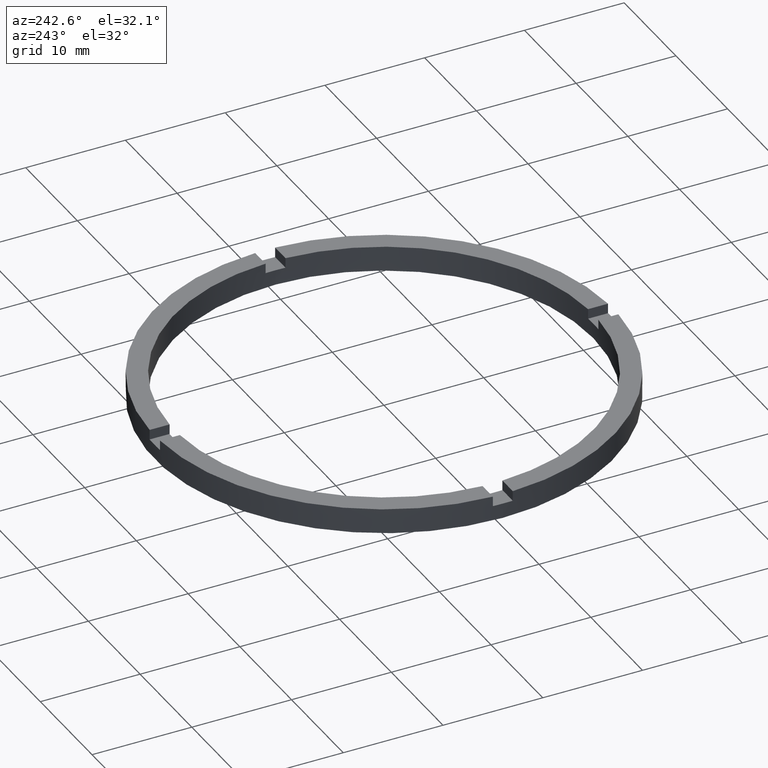
[diagram: clean part render]
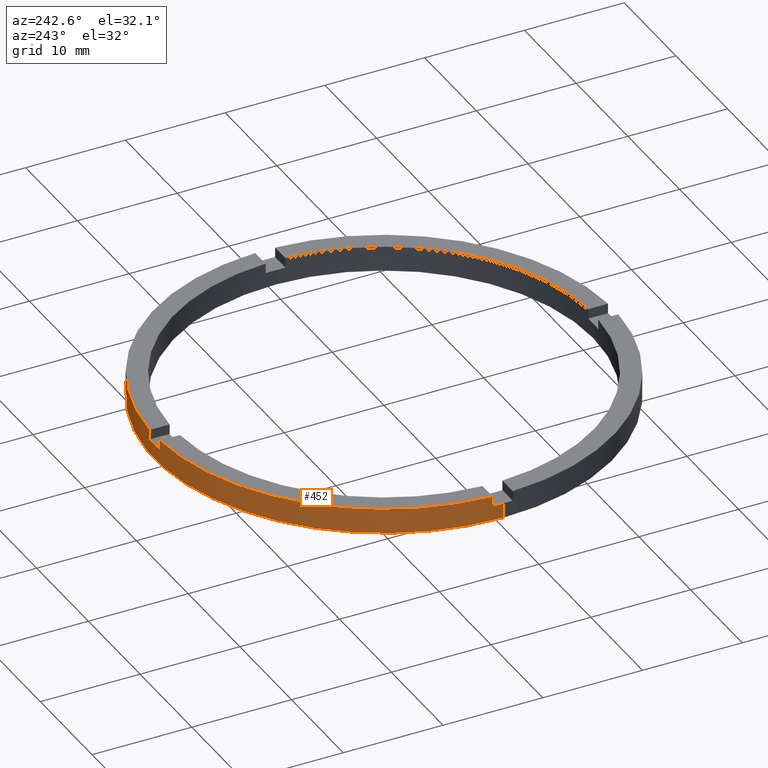
[diagram: same view with one face highlighted and labeled with its STEP entity id]
A machine part, auxiliary view. The second image highlights one B-rep face of the part: STEP entity #452.
In plain terms, the highlighted cylindrical surface (partial cylindrical patch) has radius 23 mm, axis along (-0, -0, -1).
Its self-contained STEP definition (entity closure, byte-faithful):
#2 = ORIENTED_EDGE ( 'NONE', *, *, #365, .F. ) ;
#4 = VERTEX_POINT ( 'NONE', #769 ) ;
#7 = CARTESIAN_POINT ( 'NONE',  ( 0.000000000000000000, 0.000000000000000000, 1.500000000000000000 ) ) ;
#36 = DIRECTION ( 'NONE',  ( -0.000000000000000000, -0.000000000000000000, -1.000000000000000000 ) ) ;
#48 = DIRECTION ( 'NONE',  ( 1.000000000000000000, 0.000000000000000000, 0.000000000000000000 ) ) ;
#49 = AXIS2_PLACEMENT_3D ( 'NONE', #316, #36, #215 ) ;
#61 = CARTESIAN_POINT ( 'NONE',  ( 0.000000000000000000, 0.000000000000000000, 1.500000000000000000 ) ) ;
#64 = CARTESIAN_POINT ( 'NONE',  ( -1.000000000000025757, 22.97825058615211091, 2.500000000000000000 ) ) ;
#65 = AXIS2_PLACEMENT_3D ( 'NONE', #61, #242, #444 ) ;
#73 = CARTESIAN_POINT ( 'NONE',  ( 0.000000000000000000, 0.000000000000000000, 2.500000000000000000 ) ) ;
#74 = EDGE_CURVE ( 'NONE', #779, #740, #394, .T. ) ;
#93 = LINE ( 'NONE', #676, #390 ) ;
#97 = DIRECTION ( 'NONE',  ( 1.000000000000000000, 0.000000000000000000, 0.000000000000000000 ) ) ;
#101 = DIRECTION ( 'NONE',  ( -0.000000000000000000, -0.000000000000000000, -1.000000000000000000 ) ) ;
#108 = EDGE_CURVE ( 'NONE', #720, #577, #93, .T. ) ;
#111 = CARTESIAN_POINT ( 'NONE',  ( 0.9999999999999742428, 22.97825058615211447, 2.500000000000000000 ) ) ;
#112 = EDGE_CURVE ( 'NONE', #779, #237, #366, .T. ) ;
#117 = ORIENTED_EDGE ( 'NONE', *, *, #108, .T. ) ;
#124 = VERTEX_POINT ( 'NONE', #599 ) ;
#126 = CARTESIAN_POINT ( 'NONE',  ( -23.00000000000000000, 0.000000000000000000, 2.500000000000000000 ) ) ;
#136 = CIRCLE ( 'NONE', #255, 23.00000000000000000 ) ;
#144 = LINE ( 'NONE', #126, #440 ) ;
#162 = CIRCLE ( 'NONE', #556, 23.00000000000000000 ) ;
#164 = CIRCLE ( 'NONE', #65, 23.00000000000000000 ) ;
#166 = CIRCLE ( 'NONE', #361, 23.00000000000000000 ) ;
#179 = LINE ( 'NONE', #362, #447 ) ;
#182 = VECTOR ( 'NONE', #439, 1000.000000000000000 ) ;
#193 = DIRECTION ( 'NONE',  ( -0.000000000000000000, -0.000000000000000000, -1.000000000000000000 ) ) ;
#194 = CIRCLE ( 'NONE', #767, 23.00000000000000000 ) ;
#196 = ORIENTED_EDGE ( 'NONE', *, *, #403, .T. ) ;
#215 = DIRECTION ( 'NONE',  ( -1.000000000000000000, 0.000000000000000000, 0.000000000000000000 ) ) ;
#233 = VERTEX_POINT ( 'NONE', #281 ) ;
#237 = VERTEX_POINT ( 'NONE', #724 ) ;
#242 = DIRECTION ( 'NONE',  ( 0.000000000000000000, 0.000000000000000000, 1.000000000000000000 ) ) ;
#249 = EDGE_CURVE ( 'NONE', #389, #286, #164, .T. ) ;
#255 = AXIS2_PLACEMENT_3D ( 'NONE', #73, #478, #706 ) ;
#257 = ORIENTED_EDGE ( 'NONE', *, *, #74, .T. ) ;
#281 = CARTESIAN_POINT ( 'NONE',  ( 23.00000000000000000, 2.816687638038912352E-15, 0.000000000000000000 ) ) ;
#286 = VERTEX_POINT ( 'NONE', #521 ) ;
#295 = CARTESIAN_POINT ( 'NONE',  ( 0.000000000000000000, 0.000000000000000000, 2.500000000000000000 ) ) ;
#296 = DIRECTION ( 'NONE',  ( 1.000000000000000000, 0.000000000000000000, 0.000000000000000000 ) ) ;
#302 = ORIENTED_EDGE ( 'NONE', *, *, #249, .F. ) ;
#316 = CARTESIAN_POINT ( 'NONE',  ( 0.000000000000000000, 0.000000000000000000, 2.500000000000000000 ) ) ;
#350 = EDGE_CURVE ( 'NONE', #237, #124, #144, .T. ) ;
#361 = AXIS2_PLACEMENT_3D ( 'NONE', #295, #421, #97 ) ;
#362 = CARTESIAN_POINT ( 'NONE',  ( 23.00000000000000000, 2.816687638038912352E-15, 2.500000000000000000 ) ) ;
#365 = EDGE_CURVE ( 'NONE', #479, #755, #136, .T. ) ;
#366 = CIRCLE ( 'NONE', #457, 23.00000000000000000 ) ;
#380 = ORIENTED_EDGE ( 'NONE', *, *, #671, .F. ) ;
#389 = VERTEX_POINT ( 'NONE', #534 ) ;
#390 = VECTOR ( 'NONE', #501, 1000.000000000000000 ) ;
#394 = LINE ( 'NONE', #493, #653 ) ;
#401 = DIRECTION ( 'NONE',  ( 0.000000000000000000, 0.000000000000000000, 1.000000000000000000 ) ) ;
#403 = EDGE_CURVE ( 'NONE', #233, #124, #162, .T. ) ;
#412 = DIRECTION ( 'NONE',  ( -0.000000000000000000, -0.000000000000000000, -1.000000000000000000 ) ) ;
#418 = FACE_OUTER_BOUND ( 'NONE', #553, .T. ) ;
#421 = DIRECTION ( 'NONE',  ( 0.000000000000000000, 0.000000000000000000, 1.000000000000000000 ) ) ;
#438 = CYLINDRICAL_SURFACE ( 'NONE', #49, 23.00000000000000000 ) ;
#439 = DIRECTION ( 'NONE',  ( 0.000000000000000000, 0.000000000000000000, 1.000000000000000000 ) ) ;
#440 = VECTOR ( 'NONE', #412, 1000.000000000000000 ) ;
#443 = DIRECTION ( 'NONE',  ( 0.000000000000000000, 0.000000000000000000, 1.000000000000000000 ) ) ;
#444 = DIRECTION ( 'NONE',  ( 1.000000000000000000, 0.000000000000000000, 0.000000000000000000 ) ) ;
#447 = VECTOR ( 'NONE', #193, 1000.000000000000000 ) ;
#449 = VECTOR ( 'NONE', #101, 1000.000000000000000 ) ;
#452 = ADVANCED_FACE ( 'NONE', ( #418 ), #438, .T. ) ;
#457 = AXIS2_PLACEMENT_3D ( 'NONE', #7, #443, #296 ) ;
#464 = ORIENTED_EDGE ( 'NONE', *, *, #112, .F. ) ;
#470 = ORIENTED_EDGE ( 'NONE', *, *, #775, .T. ) ;
#477 = CARTESIAN_POINT ( 'NONE',  ( 0.000000000000000000, 0.000000000000000000, 0.000000000000000000 ) ) ;
#478 = DIRECTION ( 'NONE',  ( 0.000000000000000000, 0.000000000000000000, 1.000000000000000000 ) ) ;
#479 = VERTEX_POINT ( 'NONE', #637 ) ;
#488 = CARTESIAN_POINT ( 'NONE',  ( 0.000000000000000000, 0.000000000000000000, 1.500000000000000000 ) ) ;
#493 = CARTESIAN_POINT ( 'NONE',  ( -22.97825058615211447, 0.9999999999999746869, 2.500000000000000000 ) ) ;
#494 = CARTESIAN_POINT ( 'NONE',  ( 0.9999999999999742428, 22.97825058615211447, 2.500000000000000000 ) ) ;
#501 = DIRECTION ( 'NONE',  ( -0.000000000000000000, -0.000000000000000000, -1.000000000000000000 ) ) ;
#505 = DIRECTION ( 'NONE',  ( 0.000000000000000000, -0.000000000000000000, 1.000000000000000000 ) ) ;
#506 = EDGE_CURVE ( 'NONE', #720, #740, #166, .T. ) ;
#521 = CARTESIAN_POINT ( 'NONE',  ( 22.97825058615211802, 0.9999999999998421263, 1.500000000000000000 ) ) ;
#527 = ORIENTED_EDGE ( 'NONE', *, *, #350, .F. ) ;
#534 = CARTESIAN_POINT ( 'NONE',  ( 23.00000000000000000, 2.816687638038912352E-15, 1.500000000000000000 ) ) ;
#538 = DIRECTION ( 'NONE',  ( 1.000000000000000000, 0.000000000000000000, 0.000000000000000000 ) ) ;
#553 = EDGE_LOOP ( 'NONE', ( #302, #639, #196, #527, #464, #257, #716, #117, #380, #650, #2, #470 ) ) ;
#556 = AXIS2_PLACEMENT_3D ( 'NONE', #477, #401, #48 ) ;
#559 = CARTESIAN_POINT ( 'NONE',  ( -1.000000000000025757, 22.97825058615211091, 1.500000000000000000 ) ) ;
#571 = CARTESIAN_POINT ( 'NONE',  ( -22.97825058615211447, 0.9999999999999746869, 2.500000000000000000 ) ) ;
#577 = VERTEX_POINT ( 'NONE', #559 ) ;
#599 = CARTESIAN_POINT ( 'NONE',  ( -23.00000000000000000, 0.000000000000000000, 0.000000000000000000 ) ) ;
#628 = EDGE_CURVE ( 'NONE', #389, #233, #179, .T. ) ;
#637 = CARTESIAN_POINT ( 'NONE',  ( 22.97825058615211802, 0.9999999999998421263, 2.500000000000000000 ) ) ;
#639 = ORIENTED_EDGE ( 'NONE', *, *, #628, .T. ) ;
#650 = ORIENTED_EDGE ( 'NONE', *, *, #657, .T. ) ;
#653 = VECTOR ( 'NONE', #656, 1000.000000000000000 ) ;
#656 = DIRECTION ( 'NONE',  ( 0.000000000000000000, 0.000000000000000000, 1.000000000000000000 ) ) ;
#657 = EDGE_CURVE ( 'NONE', #4, #755, #709, .T. ) ;
#671 = EDGE_CURVE ( 'NONE', #4, #577, #194, .T. ) ;
#676 = CARTESIAN_POINT ( 'NONE',  ( -1.000000000000025757, 22.97825058615211091, 2.500000000000000000 ) ) ;
#706 = DIRECTION ( 'NONE',  ( 1.000000000000000000, 0.000000000000000000, 0.000000000000000000 ) ) ;
#709 = LINE ( 'NONE', #111, #182 ) ;
#715 = LINE ( 'NONE', #731, #449 ) ;
#716 = ORIENTED_EDGE ( 'NONE', *, *, #506, .F. ) ;
#720 = VERTEX_POINT ( 'NONE', #64 ) ;
#724 = CARTESIAN_POINT ( 'NONE',  ( -23.00000000000000000, 0.000000000000000000, 1.500000000000000000 ) ) ;
#731 = CARTESIAN_POINT ( 'NONE',  ( 22.97825058615211802, 0.9999999999998421263, 2.500000000000000000 ) ) ;
#740 = VERTEX_POINT ( 'NONE', #571 ) ;
#755 = VERTEX_POINT ( 'NONE', #494 ) ;
#767 = AXIS2_PLACEMENT_3D ( 'NONE', #488, #505, #538 ) ;
#769 = CARTESIAN_POINT ( 'NONE',  ( 0.9999999999999742428, 22.97825058615211447, 1.500000000000000000 ) ) ;
#775 = EDGE_CURVE ( 'NONE', #479, #286, #715, .T. ) ;
#777 = CARTESIAN_POINT ( 'NONE',  ( -22.97825058615211447, 0.9999999999999746869, 1.500000000000000000 ) ) ;
#779 = VERTEX_POINT ( 'NONE', #777 ) ;